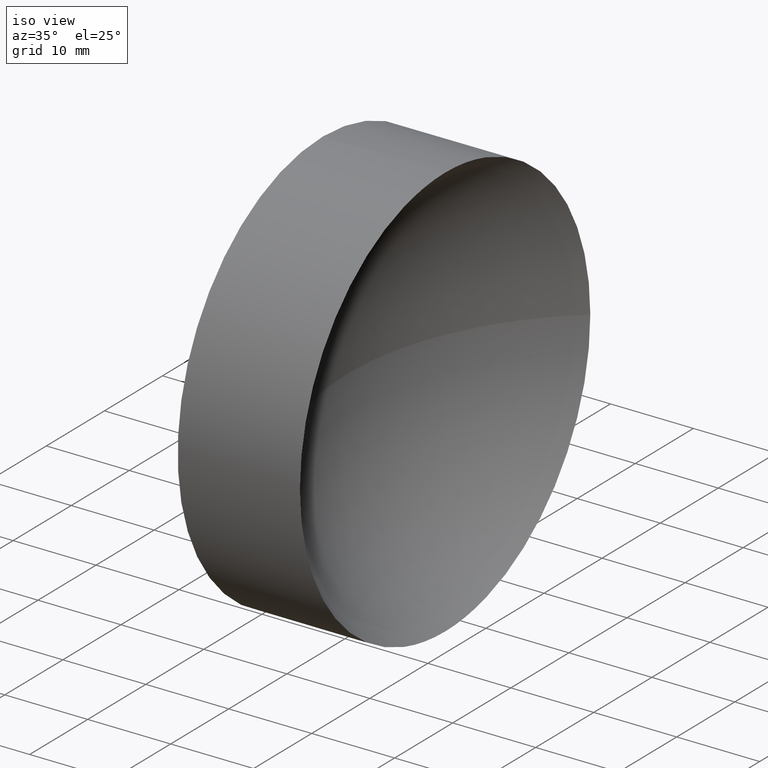
[diagram: clean part render]
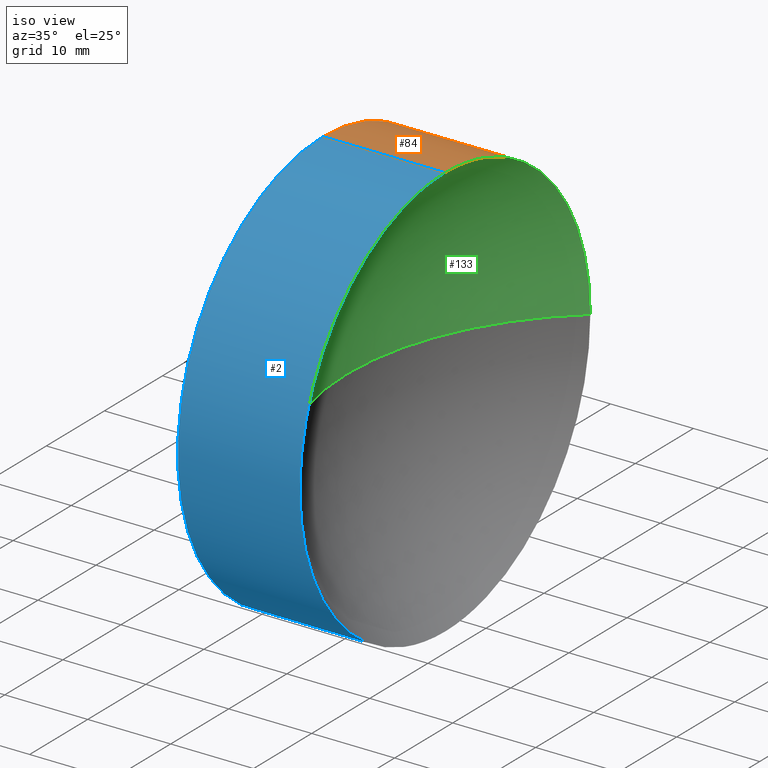
[diagram: same view with three faces highlighted in distinct colors, each labeled with its STEP entity id]
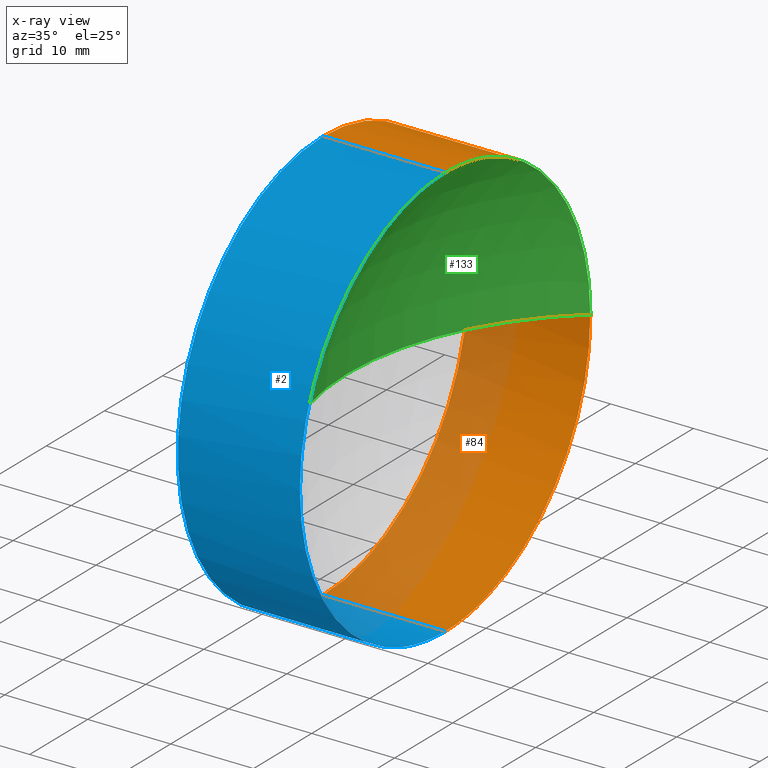
[diagram: x-ray of the same camera — body ghosted, the three highlighted faces saturated]
A machine part, iso view with three faces highlighted in distinct colors.
The next image is the same camera in x-ray (body ghosted, the three faces saturated) — at least one of them is partly hidden behind the body in this view.
Their STEP definitions:

[orange] entity #84 — the highlighted cylindrical surface (partial cylindrical patch) has radius 25 mm, axis along (-1, -0, -0).
#1 = EDGE_CURVE ( 'NONE', #76, #15, #160, .T. ) ;
#4 = CARTESIAN_POINT ( 'NONE',  ( 128.4728774773483100, 65.15563045701519200, 0.0000000000000000000 ) ) ;
#7 = ORIENTED_EDGE ( 'NONE', *, *, #88, .F. ) ;
#10 = CARTESIAN_POINT ( 'NONE',  ( 128.4728774773483100, 65.15563045701519200, 24.99999999999999300 ) ) ;
#12 = EDGE_CURVE ( 'NONE', #76, #185, #83, .T. ) ;
#13 = ORIENTED_EDGE ( 'NONE', *, *, #1, .T. ) ;
#15 = VERTEX_POINT ( 'NONE', #55 ) ;
#21 = LINE ( 'NONE', #97, #158 ) ;
#23 = CIRCLE ( 'NONE', #30, 24.99999999999999300 ) ;
#30 = AXIS2_PLACEMENT_3D ( 'NONE', #4, #89, #94 ) ;
#32 = CARTESIAN_POINT ( 'NONE',  ( 128.4728774773483100, 65.15563045701519200, -24.99999999999999300 ) ) ;
#33 = DIRECTION ( 'NONE',  ( 0.0000000000000000000, 0.0000000000000000000, 1.000000000000000000 ) ) ;
#34 = EDGE_CURVE ( 'NONE', #15, #62, #23, .T. ) ;
#35 = CARTESIAN_POINT ( 'NONE',  ( 105.6218371238301200, 65.15563045701519200, 24.99999999999999300 ) ) ;
#36 = DIRECTION ( 'NONE',  ( 0.0000000000000000000, 0.0000000000000000000, 1.000000000000000000 ) ) ;
#48 = ORIENTED_EDGE ( 'NONE', *, *, #34, .T. ) ;
#54 = AXIS2_PLACEMENT_3D ( 'NONE', #141, #139, #143 ) ;
#55 = CARTESIAN_POINT ( 'NONE',  ( 128.4728774773483100, 90.15563045701519200, 0.0000000000000000000 ) ) ;
#56 = DIRECTION ( 'NONE',  ( -1.000000000000000000, -0.0000000000000000000, -0.0000000000000000000 ) ) ;
#60 = ORIENTED_EDGE ( 'NONE', *, *, #79, .T. ) ;
#61 = DIRECTION ( 'NONE',  ( -1.000000000000000000, -0.0000000000000000000, -0.0000000000000000000 ) ) ;
#62 = VERTEX_POINT ( 'NONE', #32 ) ;
#67 = VECTOR ( 'NONE', #56, 1000.000000000000000 ) ;
#76 = VERTEX_POINT ( 'NONE', #10 ) ;
#78 = DIRECTION ( 'NONE',  ( -1.000000000000000000, -0.0000000000000000000, -0.0000000000000000000 ) ) ;
#79 = EDGE_CURVE ( 'NONE', #62, #148, #21, .T. ) ;
#83 = LINE ( 'NONE', #35, #67 ) ;
#84 = ADVANCED_FACE ( 'NONE', ( #174 ), #121, .T. ) ;
#88 = EDGE_CURVE ( 'NONE', #185, #148, #117, .T. ) ;
#89 = DIRECTION ( 'NONE',  ( -1.000000000000000000, -0.0000000000000000000, -0.0000000000000000000 ) ) ;
#91 = AXIS2_PLACEMENT_3D ( 'NONE', #112, #61, #36 ) ;
#94 = DIRECTION ( 'NONE',  ( 0.0000000000000000000, 0.0000000000000000000, 1.000000000000000000 ) ) ;
#97 = CARTESIAN_POINT ( 'NONE',  ( 105.6218371238301200, 65.15563045701519200, -24.99999999999999300 ) ) ;
#112 = CARTESIAN_POINT ( 'NONE',  ( 105.6218371238301200, 65.15563045701519200, 0.0000000000000000000 ) ) ;
#114 = CARTESIAN_POINT ( 'NONE',  ( 113.7394371346435000, 65.15563045701519200, -24.99999999999999300 ) ) ;
#115 = CARTESIAN_POINT ( 'NONE',  ( 113.7394371346435000, 65.15563045701519200, 24.99999999999999300 ) ) ;
#117 = CIRCLE ( 'NONE', #54, 24.99999999999999300 ) ;
#121 = CYLINDRICAL_SURFACE ( 'NONE', #91, 24.99999999999999300 ) ;
#123 = CARTESIAN_POINT ( 'NONE',  ( 128.4728774773483100, 65.15563045701519200, 0.0000000000000000000 ) ) ;
#139 = DIRECTION ( 'NONE',  ( -1.000000000000000000, -0.0000000000000000000, -0.0000000000000000000 ) ) ;
#141 = CARTESIAN_POINT ( 'NONE',  ( 113.7394371346435000, 65.15563045701519200, 0.0000000000000000000 ) ) ;
#143 = DIRECTION ( 'NONE',  ( 0.0000000000000000000, 0.0000000000000000000, 1.000000000000000000 ) ) ;
#148 = VERTEX_POINT ( 'NONE', #114 ) ;
#150 = ORIENTED_EDGE ( 'NONE', *, *, #12, .F. ) ;
#158 = VECTOR ( 'NONE', #78, 1000.000000000000000 ) ;
#159 = AXIS2_PLACEMENT_3D ( 'NONE', #123, #177, #33 ) ;
#160 = CIRCLE ( 'NONE', #159, 24.99999999999999300 ) ;
#174 = FACE_OUTER_BOUND ( 'NONE', #176, .T. ) ;
#176 = EDGE_LOOP ( 'NONE', ( #48, #60, #7, #150, #13 ) ) ;
#177 = DIRECTION ( 'NONE',  ( -1.000000000000000000, -0.0000000000000000000, -0.0000000000000000000 ) ) ;
#185 = VERTEX_POINT ( 'NONE', #115 ) ;

[blue] entity #2 — the highlighted cylindrical surface (partial cylindrical patch) has radius 25 mm, axis along (-1, -0, -0).
#2 = ADVANCED_FACE ( 'NONE', ( #72 ), #172, .T. ) ;
#3 = DIRECTION ( 'NONE',  ( -1.000000000000000000, -0.0000000000000000000, -0.0000000000000000000 ) ) ;
#10 = CARTESIAN_POINT ( 'NONE',  ( 128.4728774773483100, 65.15563045701519200, 24.99999999999999300 ) ) ;
#12 = EDGE_CURVE ( 'NONE', #76, #185, #83, .T. ) ;
#20 = DIRECTION ( 'NONE',  ( 0.0000000000000000000, 0.0000000000000000000, 1.000000000000000000 ) ) ;
#21 = LINE ( 'NONE', #97, #158 ) ;
#22 = AXIS2_PLACEMENT_3D ( 'NONE', #73, #3, #105 ) ;
#31 = ORIENTED_EDGE ( 'NONE', *, *, #47, .T. ) ;
#32 = CARTESIAN_POINT ( 'NONE',  ( 128.4728774773483100, 65.15563045701519200, -24.99999999999999300 ) ) ;
#35 = CARTESIAN_POINT ( 'NONE',  ( 105.6218371238301200, 65.15563045701519200, 24.99999999999999300 ) ) ;
#44 = EDGE_CURVE ( 'NONE', #148, #185, #142, .T. ) ;
#45 = EDGE_LOOP ( 'NONE', ( #147, #116, #31, #167, #111 ) ) ;
#47 = EDGE_CURVE ( 'NONE', #103, #76, #98, .T. ) ;
#56 = DIRECTION ( 'NONE',  ( -1.000000000000000000, -0.0000000000000000000, -0.0000000000000000000 ) ) ;
#58 = CARTESIAN_POINT ( 'NONE',  ( 113.7394371346435000, 65.15563045701519200, 0.0000000000000000000 ) ) ;
#62 = VERTEX_POINT ( 'NONE', #32 ) ;
#63 = CIRCLE ( 'NONE', #82, 24.99999999999999300 ) ;
#66 = EDGE_CURVE ( 'NONE', #62, #103, #63, .T. ) ;
#67 = VECTOR ( 'NONE', #56, 1000.000000000000000 ) ;
#71 = DIRECTION ( 'NONE',  ( 0.0000000000000000000, 0.0000000000000000000, 1.000000000000000000 ) ) ;
#72 = FACE_OUTER_BOUND ( 'NONE', #45, .T. ) ;
#73 = CARTESIAN_POINT ( 'NONE',  ( 105.6218371238301200, 65.15563045701519200, 0.0000000000000000000 ) ) ;
#75 = CARTESIAN_POINT ( 'NONE',  ( 128.4728774773483100, 40.15563045701518500, -3.061616997868382300E-015 ) ) ;
#76 = VERTEX_POINT ( 'NONE', #10 ) ;
#78 = DIRECTION ( 'NONE',  ( -1.000000000000000000, -0.0000000000000000000, -0.0000000000000000000 ) ) ;
#79 = EDGE_CURVE ( 'NONE', #62, #148, #21, .T. ) ;
#82 = AXIS2_PLACEMENT_3D ( 'NONE', #170, #182, #154 ) ;
#83 = LINE ( 'NONE', #35, #67 ) ;
#97 = CARTESIAN_POINT ( 'NONE',  ( 105.6218371238301200, 65.15563045701519200, -24.99999999999999300 ) ) ;
#98 = CIRCLE ( 'NONE', #178, 24.99999999999999300 ) ;
#100 = AXIS2_PLACEMENT_3D ( 'NONE', #58, #175, #20 ) ;
#103 = VERTEX_POINT ( 'NONE', #75 ) ;
#105 = DIRECTION ( 'NONE',  ( 0.0000000000000000000, 0.0000000000000000000, 1.000000000000000000 ) ) ;
#107 = DIRECTION ( 'NONE',  ( -1.000000000000000000, -0.0000000000000000000, -0.0000000000000000000 ) ) ;
#111 = ORIENTED_EDGE ( 'NONE', *, *, #44, .F. ) ;
#114 = CARTESIAN_POINT ( 'NONE',  ( 113.7394371346435000, 65.15563045701519200, -24.99999999999999300 ) ) ;
#115 = CARTESIAN_POINT ( 'NONE',  ( 113.7394371346435000, 65.15563045701519200, 24.99999999999999300 ) ) ;
#116 = ORIENTED_EDGE ( 'NONE', *, *, #66, .T. ) ;
#142 = CIRCLE ( 'NONE', #100, 24.99999999999999300 ) ;
#147 = ORIENTED_EDGE ( 'NONE', *, *, #79, .F. ) ;
#148 = VERTEX_POINT ( 'NONE', #114 ) ;
#154 = DIRECTION ( 'NONE',  ( 0.0000000000000000000, 0.0000000000000000000, 1.000000000000000000 ) ) ;
#158 = VECTOR ( 'NONE', #78, 1000.000000000000000 ) ;
#167 = ORIENTED_EDGE ( 'NONE', *, *, #12, .T. ) ;
#170 = CARTESIAN_POINT ( 'NONE',  ( 128.4728774773483100, 65.15563045701519200, 0.0000000000000000000 ) ) ;
#172 = CYLINDRICAL_SURFACE ( 'NONE', #22, 24.99999999999999300 ) ;
#175 = DIRECTION ( 'NONE',  ( -1.000000000000000000, -0.0000000000000000000, -0.0000000000000000000 ) ) ;
#178 = AXIS2_PLACEMENT_3D ( 'NONE', #179, #107, #71 ) ;
#179 = CARTESIAN_POINT ( 'NONE',  ( 128.4728774773483100, 65.15563045701519200, 0.0000000000000000000 ) ) ;
#182 = DIRECTION ( 'NONE',  ( -1.000000000000000000, -0.0000000000000000000, -0.0000000000000000000 ) ) ;
#185 = VERTEX_POINT ( 'NONE', #115 ) ;

[green] entity #133 — the highlighted spherical surface has radius 32.5 mm.
#1 = EDGE_CURVE ( 'NONE', #76, #15, #160, .T. ) ;
#5 = ORIENTED_EDGE ( 'NONE', *, *, #47, .F. ) ;
#8 = CIRCLE ( 'NONE', #132, 32.50000000000000000 ) ;
#10 = CARTESIAN_POINT ( 'NONE',  ( 128.4728774773483100, 65.15563045701519200, 24.99999999999999300 ) ) ;
#15 = VERTEX_POINT ( 'NONE', #55 ) ;
#19 = ORIENTED_EDGE ( 'NONE', *, *, #53, .T. ) ;
#33 = DIRECTION ( 'NONE',  ( 0.0000000000000000000, 0.0000000000000000000, 1.000000000000000000 ) ) ;
#39 = DIRECTION ( 'NONE',  ( 0.0000000000000000000, 0.0000000000000000000, 1.000000000000000000 ) ) ;
#46 = CIRCLE ( 'NONE', #151, 32.50000000000000000 ) ;
#47 = EDGE_CURVE ( 'NONE', #103, #76, #98, .T. ) ;
#52 = DIRECTION ( 'NONE',  ( 0.0000000000000000000, 1.000000000000000000, 0.0000000000000000000 ) ) ;
#53 = EDGE_CURVE ( 'NONE', #103, #120, #46, .T. ) ;
#55 = CARTESIAN_POINT ( 'NONE',  ( 128.4728774773483100, 90.15563045701519200, 0.0000000000000000000 ) ) ;
#57 = EDGE_CURVE ( 'NONE', #15, #120, #8, .T. ) ;
#71 = DIRECTION ( 'NONE',  ( 0.0000000000000000000, 0.0000000000000000000, 1.000000000000000000 ) ) ;
#75 = CARTESIAN_POINT ( 'NONE',  ( 128.4728774773483100, 40.15563045701518500, -3.061616997868382300E-015 ) ) ;
#76 = VERTEX_POINT ( 'NONE', #10 ) ;
#81 = ORIENTED_EDGE ( 'NONE', *, *, #1, .F. ) ;
#92 = ORIENTED_EDGE ( 'NONE', *, *, #57, .F. ) ;
#98 = CIRCLE ( 'NONE', #178, 24.99999999999999300 ) ;
#103 = VERTEX_POINT ( 'NONE', #75 ) ;
#106 = DIRECTION ( 'NONE',  ( 0.0000000000000000000, 1.000000000000000000, 1.224646799147353500E-016 ) ) ;
#107 = DIRECTION ( 'NONE',  ( -1.000000000000000000, -0.0000000000000000000, -0.0000000000000000000 ) ) ;
#109 = DIRECTION ( 'NONE',  ( 1.000000000000000000, 0.0000000000000000000, 0.0000000000000000000 ) ) ;
#120 = VERTEX_POINT ( 'NONE', #152 ) ;
#123 = CARTESIAN_POINT ( 'NONE',  ( 128.4728774773483100, 65.15563045701519200, 0.0000000000000000000 ) ) ;
#126 = DIRECTION ( 'NONE',  ( 0.0000000000000000000, 0.0000000000000000000, -1.000000000000000000 ) ) ;
#131 = EDGE_LOOP ( 'NONE', ( #5, #19, #92, #81 ) ) ;
#132 = AXIS2_PLACEMENT_3D ( 'NONE', #155, #39, #109 ) ;
#133 = ADVANCED_FACE ( 'NONE', ( #173 ), #164, .F. ) ;
#136 = CARTESIAN_POINT ( 'NONE',  ( 149.2394371346434800, 65.15563045701517800, 0.0000000000000000000 ) ) ;
#140 = AXIS2_PLACEMENT_3D ( 'NONE', #171, #126, #52 ) ;
#149 = DIRECTION ( 'NONE',  ( 0.0000000000000000000, 1.224646799147353200E-016, -1.000000000000000000 ) ) ;
#151 = AXIS2_PLACEMENT_3D ( 'NONE', #136, #149, #106 ) ;
#152 = CARTESIAN_POINT ( 'NONE',  ( 116.7394371346435000, 65.15563045701517800, 0.0000000000000000000 ) ) ;
#155 = CARTESIAN_POINT ( 'NONE',  ( 149.2394371346434800, 65.15563045701517800, 0.0000000000000000000 ) ) ;
#159 = AXIS2_PLACEMENT_3D ( 'NONE', #123, #177, #33 ) ;
#160 = CIRCLE ( 'NONE', #159, 24.99999999999999300 ) ;
#164 = SPHERICAL_SURFACE ( 'NONE', #140, 32.50000000000000000 ) ;
#171 = CARTESIAN_POINT ( 'NONE',  ( 149.2394371346434800, 65.15563045701517800, 0.0000000000000000000 ) ) ;
#173 = FACE_OUTER_BOUND ( 'NONE', #131, .T. ) ;
#177 = DIRECTION ( 'NONE',  ( -1.000000000000000000, -0.0000000000000000000, -0.0000000000000000000 ) ) ;
#178 = AXIS2_PLACEMENT_3D ( 'NONE', #179, #107, #71 ) ;
#179 = CARTESIAN_POINT ( 'NONE',  ( 128.4728774773483100, 65.15563045701519200, 0.0000000000000000000 ) ) ;